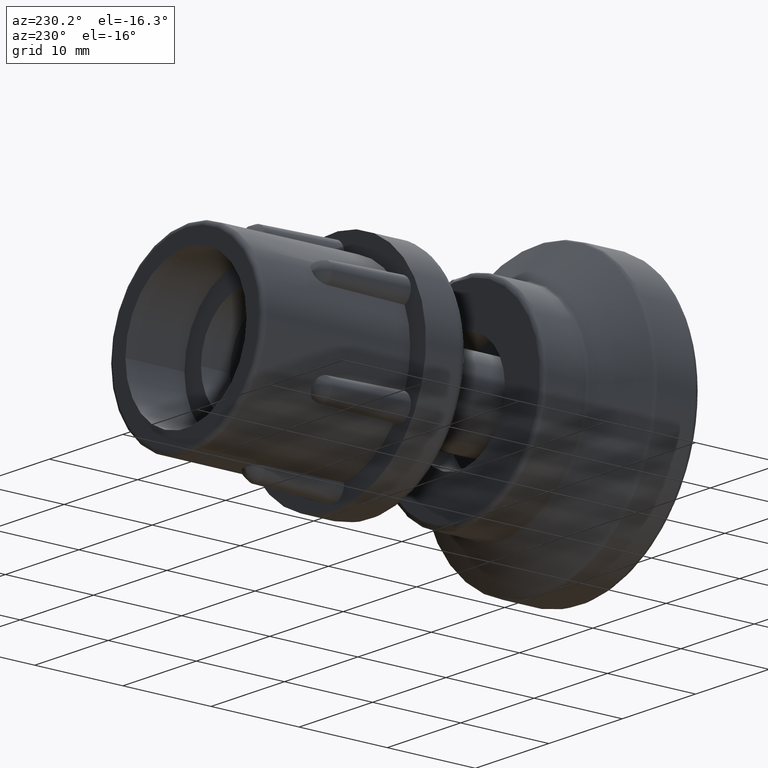
[diagram: clean part render]
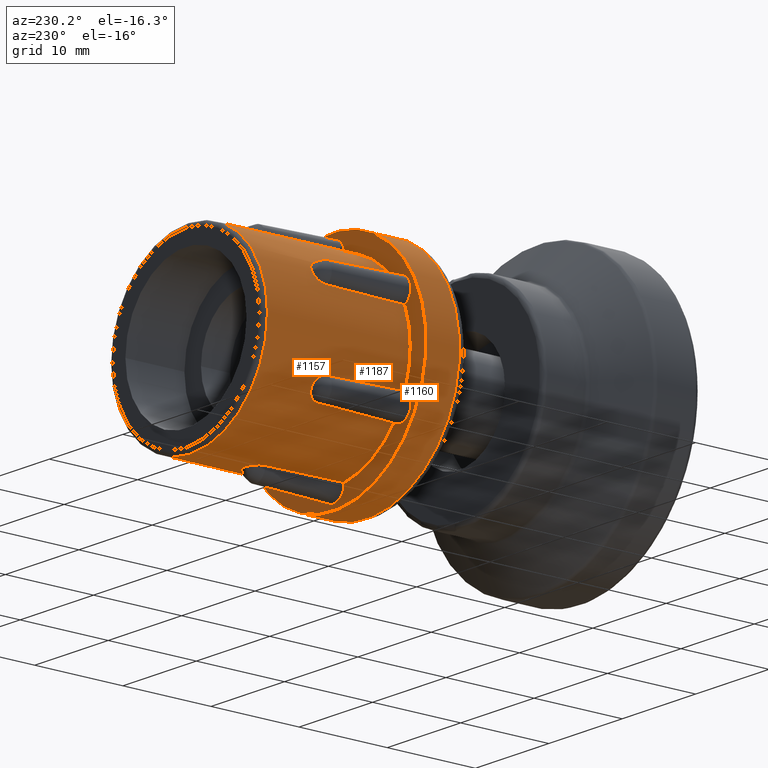
[diagram: same view with one multi-face feature highlighted, each face labeled with its STEP entity id]
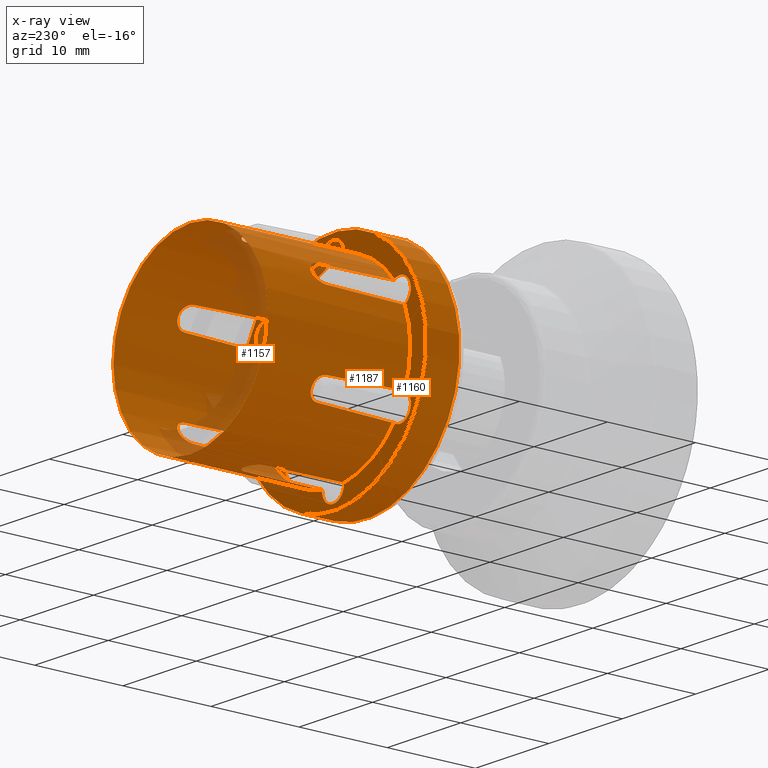
[diagram: x-ray of the same camera — body ghosted, the whole feature saturated]
A machine part, auxiliary view. The highlighted faces form ONE feature: a stepped (counterbored) hole: 2 coaxial cylindrical walls of radii 10.5 -> 12.65 mm joined by 1 annular planar shoulder face(s). The faces share edges in the B-rep.
The next image is the same camera in x-ray: the body ghosted and the whole hole feature saturated, so the bore chain is visible through the body.
Their STEP definitions:
[1] entity #1160 (Cylinder):
#60=FACE_BOUND('',#339,.T.);
#121=CIRCLE('',#1293,12.65);
#123=CIRCLE('',#1296,12.65);
#240=FACE_OUTER_BOUND('',#338,.T.);
#338=EDGE_LOOP('',(#995));
#339=EDGE_LOOP('',(#996));
#599=VERTEX_POINT('',#2296);
#601=VERTEX_POINT('',#2301);
#740=EDGE_CURVE('',#599,#599,#121,.T.);
#742=EDGE_CURVE('',#601,#601,#123,.T.);
#995=ORIENTED_EDGE('',*,*,#742,.T.);
#996=ORIENTED_EDGE('',*,*,#740,.F.);
#1105=CYLINDRICAL_SURFACE('',#1295,12.65);
#1160=ADVANCED_FACE('',(#240,#60),#1105,.T.);
#1293=AXIS2_PLACEMENT_3D('',#2297,#1592,#1593);
#1295=AXIS2_PLACEMENT_3D('',#2300,#1596,#1597);
#1296=AXIS2_PLACEMENT_3D('',#2302,#1598,#1599);
#1592=DIRECTION('center_axis',(7.00321971967498E-17,-1.,0.));
#1593=DIRECTION('ref_axis',(-1.,-6.58234994837049E-17,1.22464679914735E-16));
#1596=DIRECTION('center_axis',(7.00321971967498E-17,-1.,0.));
#1597=DIRECTION('ref_axis',(1.,0.,0.));
#1598=DIRECTION('center_axis',(7.00321971967498E-17,-1.,0.));
#1599=DIRECTION('ref_axis',(1.,7.00321971967498E-17,0.));
#2296=CARTESIAN_POINT('',(12.65,1.,0.));
#2297=CARTESIAN_POINT('Origin',(2.66122349347649E-16,1.,0.));
#2300=CARTESIAN_POINT('Origin',(1.680772732722E-16,2.4,0.));
#2301=CARTESIAN_POINT('',(12.65,4.8,0.));
#2302=CARTESIAN_POINT('Origin',(0.,4.8,0.));
[2] entity #1157 (Cylinder):
#57=FACE_BOUND('',#333,.T.);
#107=CIRCLE('',#1276,10.5);
#108=CIRCLE('',#1278,10.5);
#109=CIRCLE('',#1279,10.5);
#110=CIRCLE('',#1280,10.5);
#111=CIRCLE('',#1281,10.5);
#112=CIRCLE('',#1282,10.5);
#113=CIRCLE('',#1283,10.5);
#114=CIRCLE('',#1284,10.5);
#115=CIRCLE('',#1285,10.5);
#116=CIRCLE('',#1286,10.5);
#117=CIRCLE('',#1287,10.5);
#118=CIRCLE('',#1288,10.5);
#119=CIRCLE('',#1289,10.5);
#237=FACE_OUTER_BOUND('',#332,.T.);
#332=EDGE_LOOP('',(#954,#955,#956,#957,#958,#959,#960,#961,#962,#963,#964,
#965,#966,#967,#968,#969,#970,#971,#972,#973,#974,#975,#976,#977,#978,#979,
#980,#981,#982,#983,#984,#985,#986,#987,#988,#989));
#333=EDGE_LOOP('',(#990));
#472=B_SPLINE_CURVE_WITH_KNOTS('',3,(#2056,#2057,#2058,#2059,#2060,#2061,
#2062,#2063,#2064,#2065,#2066,#2067),.UNSPECIFIED.,.F.,.F.,(4,2,2,2,2,4),
(0.00272540016696076,0.0266375684598349,0.0532795626389164,0.102088229002091,
0.150892164157292,0.196507440558754),.UNSPECIFIED.);
#473=B_SPLINE_CURVE_WITH_KNOTS('',3,(#2069,#2070,#2071,#2072),
 .UNSPECIFIED.,.F.,.F.,(4,4),(0.950550370793692,1.75117502312903),
 .UNSPECIFIED.);
#474=B_SPLINE_CURVE_WITH_KNOTS('',3,(#2076,#2077,#2078,#2079),
 .UNSPECIFIED.,.F.,.F.,(4,4),(1.06220795663987,1.8628326072179),
 .UNSPECIFIED.);
#475=B_SPLINE_CURVE_WITH_KNOTS('',3,(#2081,#2082,#2083,#2084,#2085,#2086,
#2087,#2088,#2089,#2090,#2091,#2092),.UNSPECIFIED.,.F.,.F.,(4,2,2,2,2,4),
(0.202759216466594,0.248374492868062,0.297178428023268,0.345987094386448,
0.372629088565541,0.396541256858409),.UNSPECIFIED.);
#476=B_SPLINE_CURVE_WITH_KNOTS('',3,(#2096,#2097,#2098,#2099,#2100,#2101,
#2102,#2103,#2104,#2105,#2106,#2107),.UNSPECIFIED.,.F.,.F.,(4,2,2,2,2,4),
(0.00272540016695971,0.0266375684598334,0.0532795626389154,0.102088229002095,
0.150892164157302,0.19650744055877),.UNSPECIFIED.);
#477=B_SPLINE_CURVE_WITH_KNOTS('',3,(#2109,#2110,#2111,#2112),
 .UNSPECIFIED.,.F.,.F.,(4,4),(0.950550370793692,1.75117502312903),
 .UNSPECIFIED.);
#478=B_SPLINE_CURVE_WITH_KNOTS('',3,(#2116,#2117,#2118,#2119),
 .UNSPECIFIED.,.F.,.F.,(4,4),(1.06220795663987,1.8628326072179),
 .UNSPECIFIED.);
#479=B_SPLINE_CURVE_WITH_KNOTS('',3,(#2121,#2122,#2123,#2124,#2125,#2126,
#2127,#2128,#2129,#2130,#2131,#2132),.UNSPECIFIED.,.F.,.F.,(4,2,2,2,2,4),
(0.202759216466572,0.248374492868034,0.297178428023235,0.345987094386407,
0.372629088565489,0.396541256858363),.UNSPECIFIED.);
#480=B_SPLINE_CURVE_WITH_KNOTS('',3,(#2136,#2137,#2138,#2139,#2140,#2141,
#2142,#2143,#2144,#2145,#2146,#2147),.UNSPECIFIED.,.F.,.F.,(4,2,2,2,2,4),
(0.00272540016696093,0.0266375684598343,0.0532795626389139,0.102088229002084,
0.150892164157282,0.196507440558743),.UNSPECIFIED.);
#481=B_SPLINE_CURVE_WITH_KNOTS('',3,(#2149,#2150,#2151,#2152),
 .UNSPECIFIED.,.F.,.F.,(4,4),(0.950550370793692,1.75117502312903),
 .UNSPECIFIED.);
#482=B_SPLINE_CURVE_WITH_KNOTS('',3,(#2156,#2157,#2158,#2159),
 .UNSPECIFIED.,.F.,.F.,(4,4),(1.06220795663987,1.86283260721789),
 .UNSPECIFIED.);
#483=B_SPLINE_CURVE_WITH_KNOTS('',3,(#2161,#2162,#2163,#2164,#2165,#2166,
#2167,#2168,#2169,#2170,#2171,#2172),.UNSPECIFIED.,.F.,.F.,(4,2,2,2,2,4),
(0.202759216466568,0.248374492868031,0.297178428023233,0.345987094386406,
0.372629088565488,0.396541256858362),.UNSPECIFIED.);
#484=B_SPLINE_CURVE_WITH_KNOTS('',3,(#2176,#2177,#2178,#2179,#2180,#2181,
#2182,#2183,#2184,#2185,#2186,#2187),.UNSPECIFIED.,.F.,.F.,(4,2,2,2,2,4),
(0.00272540016697087,0.0266375684598407,0.0532795626389281,0.102088229002099,
0.150892164157296,0.196507440558757),.UNSPECIFIED.);
#485=B_SPLINE_CURVE_WITH_KNOTS('',3,(#2189,#2190,#2191,#2192),
 .UNSPECIFIED.,.F.,.F.,(4,4),(0.950550370793691,1.75117502312903),
 .UNSPECIFIED.);
#486=B_SPLINE_CURVE_WITH_KNOTS('',3,(#2196,#2197,#2198,#2199),
 .UNSPECIFIED.,.F.,.F.,(4,4),(1.06220795663987,1.86283260721789),
 .UNSPECIFIED.);
#487=B_SPLINE_CURVE_WITH_KNOTS('',3,(#2201,#2202,#2203,#2204,#2205,#2206,
#2207,#2208,#2209,#2210,#2211,#2212),.UNSPECIFIED.,.F.,.F.,(4,2,2,2,2,4),
(0.202759216466612,0.248374492868082,0.297178428023288,0.34598709438647,
0.372629088565553,0.396541256858427),.UNSPECIFIED.);
#488=B_SPLINE_CURVE_WITH_KNOTS('',3,(#2216,#2217,#2218,#2219,#2220,#2221,
#2222,#2223,#2224,#2225,#2226,#2227),.UNSPECIFIED.,.F.,.F.,(4,2,2,2,2,4),
(0.00272540016695129,0.0266375684598295,0.0532795626389059,0.102088229002087,
0.150892164157295,0.196507440558763),.UNSPECIFIED.);
#489=B_SPLINE_CURVE_WITH_KNOTS('',3,(#2229,#2230,#2231,#2232),
 .UNSPECIFIED.,.F.,.F.,(4,4),(0.950550370793691,1.75117502312903),
 .UNSPECIFIED.);
#490=B_SPLINE_CURVE_WITH_KNOTS('',3,(#2236,#2237,#2238,#2239),
 .UNSPECIFIED.,.F.,.F.,(4,4),(1.06220795663987,1.8628326072179),
 .UNSPECIFIED.);
#491=B_SPLINE_CURVE_WITH_KNOTS('',3,(#2241,#2242,#2243,#2244,#2245,#2246,
#2247,#2248,#2249,#2250,#2251,#2252),.UNSPECIFIED.,.F.,.F.,(4,2,2,2,2,4),
(0.202759216466572,0.248374492868034,0.297178428023234,0.345987094386407,
0.372629088565488,0.396541256858362),.UNSPECIFIED.);
#492=B_SPLINE_CURVE_WITH_KNOTS('',3,(#2256,#2257,#2258,#2259,#2260,#2261,
#2262,#2263,#2264,#2265,#2266,#2267),.UNSPECIFIED.,.F.,.F.,(4,2,2,2,2,4),
(0.00272540016696093,0.0266375684598348,0.0532795626389154,0.102088229002087,
0.150892164157285,0.196507440558747),.UNSPECIFIED.);
#493=B_SPLINE_CURVE_WITH_KNOTS('',3,(#2269,#2270,#2271,#2272),
 .UNSPECIFIED.,.F.,.F.,(4,4),(0.950550370793692,1.75117502312903),
 .UNSPECIFIED.);
#494=B_SPLINE_CURVE_WITH_KNOTS('',3,(#2276,#2277,#2278,#2279),
 .UNSPECIFIED.,.F.,.F.,(4,4),(1.06220795663987,1.86283260721789),
 .UNSPECIFIED.);
#495=B_SPLINE_CURVE_WITH_KNOTS('',3,(#2280,#2281,#2282,#2283,#2284,#2285,
#2286,#2287,#2288,#2289,#2290,#2291),.UNSPECIFIED.,.F.,.F.,(4,2,2,2,2,4),
(0.202759216466572,0.248374492868034,0.297178428023235,0.345987094386408,
0.372629088565489,0.396541256858363),.UNSPECIFIED.);
#561=VERTEX_POINT('',#2049);
#562=VERTEX_POINT('',#2052);
#563=VERTEX_POINT('',#2053);
#564=VERTEX_POINT('',#2055);
#565=VERTEX_POINT('',#2068);
#566=VERTEX_POINT('',#2073);
#567=VERTEX_POINT('',#2075);
#568=VERTEX_POINT('',#2080);
#569=VERTEX_POINT('',#2093);
#570=VERTEX_POINT('',#2095);
#571=VERTEX_POINT('',#2108);
#572=VERTEX_POINT('',#2113);
#573=VERTEX_POINT('',#2115);
#574=VERTEX_POINT('',#2120);
#575=VERTEX_POINT('',#2133);
#576=VERTEX_POINT('',#2135);
#577=VERTEX_POINT('',#2148);
#578=VERTEX_POINT('',#2153);
#579=VERTEX_POINT('',#2155);
#580=VERTEX_POINT('',#2160);
#581=VERTEX_POINT('',#2173);
#582=VERTEX_POINT('',#2175);
#583=VERTEX_POINT('',#2188);
#584=VERTEX_POINT('',#2193);
#585=VERTEX_POINT('',#2195);
#586=VERTEX_POINT('',#2200);
#587=VERTEX_POINT('',#2213);
#588=VERTEX_POINT('',#2215);
#589=VERTEX_POINT('',#2228);
#590=VERTEX_POINT('',#2233);
#591=VERTEX_POINT('',#2235);
#592=VERTEX_POINT('',#2240);
#593=VERTEX_POINT('',#2253);
#594=VERTEX_POINT('',#2255);
#595=VERTEX_POINT('',#2268);
#596=VERTEX_POINT('',#2273);
#597=VERTEX_POINT('',#2275);
#702=EDGE_CURVE('',#561,#561,#107,.T.);
#703=EDGE_CURVE('',#562,#563,#108,.T.);
#704=EDGE_CURVE('',#564,#563,#472,.F.);
#705=EDGE_CURVE('',#565,#564,#473,.T.);
#706=EDGE_CURVE('',#566,#565,#109,.T.);
#707=EDGE_CURVE('',#567,#566,#474,.T.);
#708=EDGE_CURVE('',#568,#567,#475,.F.);
#709=EDGE_CURVE('',#568,#569,#110,.T.);
#710=EDGE_CURVE('',#570,#569,#476,.F.);
#711=EDGE_CURVE('',#571,#570,#477,.T.);
#712=EDGE_CURVE('',#572,#571,#111,.T.);
#713=EDGE_CURVE('',#573,#572,#478,.T.);
#714=EDGE_CURVE('',#574,#573,#479,.F.);
#715=EDGE_CURVE('',#574,#575,#112,.T.);
#716=EDGE_CURVE('',#576,#575,#480,.F.);
#717=EDGE_CURVE('',#577,#576,#481,.T.);
#718=EDGE_CURVE('',#578,#577,#113,.T.);
#719=EDGE_CURVE('',#579,#578,#482,.T.);
#720=EDGE_CURVE('',#580,#579,#483,.F.);
#721=EDGE_CURVE('',#580,#581,#114,.T.);
#722=EDGE_CURVE('',#582,#581,#484,.F.);
#723=EDGE_CURVE('',#583,#582,#485,.T.);
#724=EDGE_CURVE('',#584,#583,#115,.T.);
#725=EDGE_CURVE('',#585,#584,#486,.T.);
#726=EDGE_CURVE('',#586,#585,#487,.F.);
#727=EDGE_CURVE('',#586,#587,#116,.T.);
#728=EDGE_CURVE('',#588,#587,#488,.F.);
#729=EDGE_CURVE('',#589,#588,#489,.T.);
#730=EDGE_CURVE('',#590,#589,#117,.T.);
#731=EDGE_CURVE('',#591,#590,#490,.T.);
#732=EDGE_CURVE('',#592,#591,#491,.F.);
#733=EDGE_CURVE('',#592,#593,#118,.T.);
#734=EDGE_CURVE('',#594,#593,#492,.F.);
#735=EDGE_CURVE('',#595,#594,#493,.T.);
#736=EDGE_CURVE('',#596,#595,#119,.T.);
#737=EDGE_CURVE('',#597,#596,#494,.T.);
#738=EDGE_CURVE('',#562,#597,#495,.F.);
#954=ORIENTED_EDGE('',*,*,#703,.T.);
#955=ORIENTED_EDGE('',*,*,#704,.F.);
#956=ORIENTED_EDGE('',*,*,#705,.F.);
#957=ORIENTED_EDGE('',*,*,#706,.F.);
#958=ORIENTED_EDGE('',*,*,#707,.F.);
#959=ORIENTED_EDGE('',*,*,#708,.F.);
#960=ORIENTED_EDGE('',*,*,#709,.T.);
#961=ORIENTED_EDGE('',*,*,#710,.F.);
#962=ORIENTED_EDGE('',*,*,#711,.F.);
#963=ORIENTED_EDGE('',*,*,#712,.F.);
#964=ORIENTED_EDGE('',*,*,#713,.F.);
#965=ORIENTED_EDGE('',*,*,#714,.F.);
#966=ORIENTED_EDGE('',*,*,#715,.T.);
#967=ORIENTED_EDGE('',*,*,#716,.F.);
#968=ORIENTED_EDGE('',*,*,#717,.F.);
#969=ORIENTED_EDGE('',*,*,#718,.F.);
#970=ORIENTED_EDGE('',*,*,#719,.F.);
#971=ORIENTED_EDGE('',*,*,#720,.F.);
#972=ORIENTED_EDGE('',*,*,#721,.T.);
#973=ORIENTED_EDGE('',*,*,#722,.F.);
#974=ORIENTED_EDGE('',*,*,#723,.F.);
#975=ORIENTED_EDGE('',*,*,#724,.F.);
#976=ORIENTED_EDGE('',*,*,#725,.F.);
#977=ORIENTED_EDGE('',*,*,#726,.F.);
#978=ORIENTED_EDGE('',*,*,#727,.T.);
#979=ORIENTED_EDGE('',*,*,#728,.F.);
#980=ORIENTED_EDGE('',*,*,#729,.F.);
#981=ORIENTED_EDGE('',*,*,#730,.F.);
#982=ORIENTED_EDGE('',*,*,#731,.F.);
#983=ORIENTED_EDGE('',*,*,#732,.F.);
#984=ORIENTED_EDGE('',*,*,#733,.T.);
#985=ORIENTED_EDGE('',*,*,#734,.F.);
#986=ORIENTED_EDGE('',*,*,#735,.F.);
#987=ORIENTED_EDGE('',*,*,#736,.F.);
#988=ORIENTED_EDGE('',*,*,#737,.F.);
#989=ORIENTED_EDGE('',*,*,#738,.F.);
#990=ORIENTED_EDGE('',*,*,#702,.F.);
#1104=CYLINDRICAL_SURFACE('',#1277,10.5);
#1157=ADVANCED_FACE('',(#237,#57),#1104,.T.);
#1276=AXIS2_PLACEMENT_3D('',#2050,#1558,#1559);
#1277=AXIS2_PLACEMENT_3D('',#2051,#1560,#1561);
#1278=AXIS2_PLACEMENT_3D('',#2054,#1562,#1563);
#1279=AXIS2_PLACEMENT_3D('',#2074,#1564,#1565);
#1280=AXIS2_PLACEMENT_3D('',#2094,#1566,#1567);
#1281=AXIS2_PLACEMENT_3D('',#2114,#1568,#1569);
#1282=AXIS2_PLACEMENT_3D('',#2134,#1570,#1571);
#1283=AXIS2_PLACEMENT_3D('',#2154,#1572,#1573);
#1284=AXIS2_PLACEMENT_3D('',#2174,#1574,#1575);
#1285=AXIS2_PLACEMENT_3D('',#2194,#1576,#1577);
#1286=AXIS2_PLACEMENT_3D('',#2214,#1578,#1579);
#1287=AXIS2_PLACEMENT_3D('',#2234,#1580,#1581);
#1288=AXIS2_PLACEMENT_3D('',#2254,#1582,#1583);
#1289=AXIS2_PLACEMENT_3D('',#2274,#1584,#1585);
#1558=DIRECTION('center_axis',(-7.00321971967498E-17,1.,0.));
#1559=DIRECTION('ref_axis',(-1.,-7.26931742314091E-17,1.22464679914735E-16));
#1560=DIRECTION('center_axis',(7.00321971967498E-17,-1.,0.));
#1561=DIRECTION('ref_axis',(1.,0.,0.));
#1562=DIRECTION('center_axis',(-3.50160985983749E-17,1.,6.06496618552267E-17));
#1563=DIRECTION('ref_axis',(1.,0.,0.));
#1564=DIRECTION('center_axis',(7.00321971967498E-17,-1.,0.));
#1565=DIRECTION('ref_axis',(1.,0.,0.));
#1566=DIRECTION('center_axis',(3.50160985983749E-17,1.,6.06496618552267E-17));
#1567=DIRECTION('ref_axis',(1.,0.,0.));
#1568=DIRECTION('center_axis',(7.00321971967498E-17,-1.,0.));
#1569=DIRECTION('ref_axis',(1.,0.,0.));
#1570=DIRECTION('center_axis',(7.00321971967498E-17,1.,-6.16297582203915E-33));
#1571=DIRECTION('ref_axis',(1.,0.,0.));
#1572=DIRECTION('center_axis',(7.00321971967498E-17,-1.,0.));
#1573=DIRECTION('ref_axis',(1.,0.,0.));
#1574=DIRECTION('center_axis',(3.50160985983749E-17,1.,-6.06496618552267E-17));
#1575=DIRECTION('ref_axis',(1.,0.,0.));
#1576=DIRECTION('center_axis',(7.00321971967498E-17,-1.,0.));
#1577=DIRECTION('ref_axis',(1.,0.,0.));
#1578=DIRECTION('center_axis',(-3.50160985983749E-17,1.,-6.06496618552267E-17));
#1579=DIRECTION('ref_axis',(1.,0.,0.));
#1580=DIRECTION('center_axis',(7.00321971967498E-17,-1.,0.));
#1581=DIRECTION('ref_axis',(1.,0.,0.));
#1582=DIRECTION('center_axis',(-7.00321971967498E-17,1.,0.));
#1583=DIRECTION('ref_axis',(1.,0.,0.));
#1584=DIRECTION('center_axis',(7.00321971967498E-17,-1.,0.));
#1585=DIRECTION('ref_axis',(1.,0.,0.));
#2049=CARTESIAN_POINT('',(10.5,21.,-2.57175827820944E-15));
#2050=CARTESIAN_POINT('Origin',(-1.13452159458735E-15,21.,0.));
#2051=CARTESIAN_POINT('Origin',(-5.84768846592861E-16,13.15,0.));
#2052=CARTESIAN_POINT('',(-9.07779776600053,14.8,-5.27670235275742));
#2053=CARTESIAN_POINT('',(-9.10865716869732,14.8,-5.22325229939536));
#2054=CARTESIAN_POINT('Origin',(-7.00321971967498E-16,14.8,0.));
#2055=CARTESIAN_POINT('',(-9.66469396028175,13.5812402386484,-4.10410655978782));
#2056=CARTESIAN_POINT('Ctrl Pts',(-9.10865716869732,14.8,-5.22325229939536));
#2057=CARTESIAN_POINT('Ctrl Pts',(-9.14828596385077,14.8,-5.15414495240715));
#2058=CARTESIAN_POINT('Ctrl Pts',(-9.18703686397533,14.7923853728023,-5.08472985827637));
#2059=CARTESIAN_POINT('Ctrl Pts',(-9.2660728028761,14.7603829412495,-4.93938224384525));
#2060=CARTESIAN_POINT('Ctrl Pts',(-9.30577950519381,14.7342798764769,-4.86406582529983));
#2061=CARTESIAN_POINT('Ctrl Pts',(-9.41131181645473,14.6354468067101,-4.65828203704275));
#2062=CARTESIAN_POINT('Ctrl Pts',(-9.47032952597156,14.5429598551513,-4.53606692332961));
#2063=CARTESIAN_POINT('Ctrl Pts',(-9.5667533744407,14.3112494604851,-4.3290035582413));
#2064=CARTESIAN_POINT('Ctrl Pts',(-9.60332623310694,14.1742340579084,-4.24616732171385));
#2065=CARTESIAN_POINT('Ctrl Pts',(-9.65098485914098,13.8830341448429,-4.13664370050256));
#2066=CARTESIAN_POINT('Ctrl Pts',(-9.66320744015603,13.7330824846638,-4.10760714191734));
#2067=CARTESIAN_POINT('Ctrl Pts',(-9.6646939602788,13.5812402386483,-4.10410655979478));
#2068=CARTESIAN_POINT('',(-9.7485625916759,4.8,-3.9007085761663));
#2069=CARTESIAN_POINT('Ctrl Pts',(-9.7485625916759,4.8,-3.9007085761663));
#2070=CARTESIAN_POINT('Ctrl Pts',(-9.72149824530748,7.70664905057651,-3.96834717808273));
#2071=CARTESIAN_POINT('Ctrl Pts',(-9.69326776811045,10.6625369866884,-4.03681856326026));
#2072=CARTESIAN_POINT('Ctrl Pts',(-9.6646939602788,13.5812402386482,-4.10410655979478));
#2073=CARTESIAN_POINT('',(-9.74856259167589,4.8,3.90070857616631));
#2074=CARTESIAN_POINT('Origin',(0.,4.8,0.));
#2075=CARTESIAN_POINT('',(-9.66469396028175,13.5812402386484,4.10410655978784));
#2076=CARTESIAN_POINT('Ctrl Pts',(-9.66469396027879,13.5812402386482,4.10410655979479));
#2077=CARTESIAN_POINT('Ctrl Pts',(-9.69326776766236,10.6625370324582,4.03681856431545));
#2078=CARTESIAN_POINT('Ctrl Pts',(-9.7214982448797,7.70664909651869,3.96834717915183));
#2079=CARTESIAN_POINT('Ctrl Pts',(-9.74856259167589,4.8,3.90070857616631));
#2080=CARTESIAN_POINT('',(-9.10865716869731,14.8,5.22325229939537));
#2081=CARTESIAN_POINT('Ctrl Pts',(-9.66469396027879,13.5812402386483,4.10410655979479));
#2082=CARTESIAN_POINT('Ctrl Pts',(-9.66320744015603,13.7330824846638,4.10760714191736));
#2083=CARTESIAN_POINT('Ctrl Pts',(-9.65098485914097,13.8830341448429,4.13664370050258));
#2084=CARTESIAN_POINT('Ctrl Pts',(-9.60332623310693,14.1742340579084,4.24616732171387));
#2085=CARTESIAN_POINT('Ctrl Pts',(-9.56675337444069,14.3112494604851,4.3290035582413));
#2086=CARTESIAN_POINT('Ctrl Pts',(-9.47032952597155,14.5429598551513,4.53606692332962));
#2087=CARTESIAN_POINT('Ctrl Pts',(-9.41131181645473,14.6354468067101,4.65828203704276));
#2088=CARTESIAN_POINT('Ctrl Pts',(-9.30577950519379,14.7342798764769,4.86406582529987));
#2089=CARTESIAN_POINT('Ctrl Pts',(-9.26607280287607,14.7603829412495,4.93938224384531));
#2090=CARTESIAN_POINT('Ctrl Pts',(-9.1870368639753,14.7923853728023,5.08472985827644));
#2091=CARTESIAN_POINT('Ctrl Pts',(-9.14828596385074,14.8,5.15414495240719));
#2092=CARTESIAN_POINT('Ctrl Pts',(-9.10865716869731,14.8,5.22325229939537));
#2093=CARTESIAN_POINT('',(-9.07779776600053,14.8,5.27670235275743));
#2094=CARTESIAN_POINT('Origin',(-7.00321971967498E-16,14.8,0.));
#2095=CARTESIAN_POINT('',(-8.38660752075549,13.5812402386484,6.31781720951211));
#2096=CARTESIAN_POINT('Ctrl Pts',(-9.07779776600053,14.8,5.27670235275744));
#2097=CARTESIAN_POINT('Ctrl Pts',(-9.03776344549731,14.8,5.34557556957579));
#2098=CARTESIAN_POINT('Ctrl Pts',(-8.99702366063626,14.7923853728023,5.41384238056857));
#2099=CARTESIAN_POINT('Ctrl Pts',(-8.91066690360982,14.7603829412495,5.55496331868416));
#2100=CARTESIAN_POINT('Ctrl Pts',(-8.86529432298628,14.7342798764769,5.62700854086451));
#2101=CARTESIAN_POINT('Ctrl Pts',(-8.73984649029911,14.6354468067101,5.82129409746509));
#2102=CARTESIAN_POINT('Ctrl Pts',(-8.66351395185555,14.5429598551513,5.9335124900364));
#2103=CARTESIAN_POINT('Ctrl Pts',(-8.53240374173054,14.3112494604851,6.1205496748855));
#2104=CARTESIAN_POINT('Ctrl Pts',(-8.478951885877,14.1742340579084,6.1936408178432));
#2105=CARTESIAN_POINT('Ctrl Pts',(-8.40793096061058,13.8830341448429,6.28967620930379));
#2106=CARTESIAN_POINT('Ctrl Pts',(-8.38889585374483,13.7330824846638,6.31477955425525));
#2107=CARTESIAN_POINT('Ctrl Pts',(-8.38660752076004,13.5812402386483,6.31781720950608));
#2108=CARTESIAN_POINT('',(-8.25239401555779,4.8,6.49214856669084));
#2109=CARTESIAN_POINT('Ctrl Pts',(-8.25239401555779,4.8,6.49214856669084));
#2110=CARTESIAN_POINT('Ctrl Pts',(-8.29743858990967,7.7066490505765,6.43489085424075));
#2111=CARTESIAN_POINT('Ctrl Pts',(-8.34262131030721,10.6625369866884,6.37620685123841));
#2112=CARTESIAN_POINT('Ctrl Pts',(-8.38660752076003,13.5812402386482,6.31781720950608));
#2113=CARTESIAN_POINT('',(-1.4961685761181,4.8,10.3928571428571));
#2114=CARTESIAN_POINT('Origin',(0.,4.8,0.));
#2115=CARTESIAN_POINT('',(-1.27808643952625,13.5812402386484,10.4219237692999));
#2116=CARTESIAN_POINT('Ctrl Pts',(-1.27808643951875,13.5812402386482,10.4219237693009));
#2117=CARTESIAN_POINT('Ctrl Pts',(-1.35064645666538,10.6625370324582,10.4130254146382));
#2118=CARTESIAN_POINT('Ctrl Pts',(-1.42405965425805,7.70664909651869,10.4032380324876));
#2119=CARTESIAN_POINT('Ctrl Pts',(-1.4961685761181,4.8,10.3928571428571));
#2120=CARTESIAN_POINT('',(-0.0308594026967835,14.8,10.4999546521528));
#2121=CARTESIAN_POINT('Ctrl Pts',(-1.27808643951875,13.5812402386483,10.4219237693009));
#2122=CARTESIAN_POINT('Ctrl Pts',(-1.27431158641119,13.7330824846638,10.4223866961726));
#2123=CARTESIAN_POINT('Ctrl Pts',(-1.24305389853039,13.8830341448429,10.4263199098064));
#2124=CARTESIAN_POINT('Ctrl Pts',(-1.12437434722993,14.1742340579084,10.4398081395571));
#2125=CARTESIAN_POINT('Ctrl Pts',(-1.03434963271015,14.3112494604851,10.4495532331268));
#2126=CARTESIAN_POINT('Ctrl Pts',(-0.806815574116006,14.5429598551513,10.469579413366));
#2127=CARTESIAN_POINT('Ctrl Pts',(-0.671465326155614,14.6354468067101,10.4795761345078));
#2128=CARTESIAN_POINT('Ctrl Pts',(-0.440485182207515,14.7342798764769,10.4910743661643));
#2129=CARTESIAN_POINT('Ctrl Pts',(-0.35540589926627,14.7603829412495,10.4943455625294));
#2130=CARTESIAN_POINT('Ctrl Pts',(-0.190013203339067,14.7923853728023,10.4985722388449));
#2131=CARTESIAN_POINT('Ctrl Pts',(-0.110522518353444,14.8,10.4997205219829));
#2132=CARTESIAN_POINT('Ctrl Pts',(-0.0308594026967864,14.8,10.4999546521528));
#2133=CARTESIAN_POINT('',(0.0308594026967884,14.8,10.4999546521528));
#2134=CARTESIAN_POINT('Origin',(-7.00321971967498E-16,14.8,0.));
#2135=CARTESIAN_POINT('',(1.27808643952626,13.5812402386484,10.4219237692999));
#2136=CARTESIAN_POINT('Ctrl Pts',(0.0308594026967912,14.8,10.4999546521528));
#2137=CARTESIAN_POINT('Ctrl Pts',(0.110522518353447,14.8,10.4997205219829));
#2138=CARTESIAN_POINT('Ctrl Pts',(0.190013203339069,14.7923853728023,10.4985722388449));
#2139=CARTESIAN_POINT('Ctrl Pts',(0.355405899266275,14.7603829412495,10.4943455625294));
#2140=CARTESIAN_POINT('Ctrl Pts',(0.440485182207521,14.7342798764769,10.4910743661643));
#2141=CARTESIAN_POINT('Ctrl Pts',(0.67146532615562,14.6354468067101,10.4795761345078));
#2142=CARTESIAN_POINT('Ctrl Pts',(0.806815574116011,14.5429598551513,10.469579413366));
#2143=CARTESIAN_POINT('Ctrl Pts',(1.03434963271015,14.3112494604851,10.4495532331268));
#2144=CARTESIAN_POINT('Ctrl Pts',(1.12437434722993,14.1742340579084,10.4398081395571));
#2145=CARTESIAN_POINT('Ctrl Pts',(1.2430538985304,13.8830341448429,10.4263199098064));
#2146=CARTESIAN_POINT('Ctrl Pts',(1.2743115864112,13.7330824846638,10.4223866961726));
#2147=CARTESIAN_POINT('Ctrl Pts',(1.27808643951876,13.5812402386483,10.4219237693009));
#2148=CARTESIAN_POINT('',(1.4961685761181,4.8,10.3928571428571));
#2149=CARTESIAN_POINT('Ctrl Pts',(1.4961685761181,4.8,10.3928571428571));
#2150=CARTESIAN_POINT('Ctrl Pts',(1.4240596553978,7.70664905057651,10.4032380323235));
#2151=CARTESIAN_POINT('Ctrl Pts',(1.35064645780324,10.6625369866884,10.4130254144987));
#2152=CARTESIAN_POINT('Ctrl Pts',(1.27808643951876,13.5812402386482,10.4219237693009));
#2153=CARTESIAN_POINT('',(8.25239401555779,4.8,6.49214856669084));
#2154=CARTESIAN_POINT('Origin',(0.,4.8,0.));
#2155=CARTESIAN_POINT('',(8.38660752075549,13.5812402386484,6.31781720951211));
#2156=CARTESIAN_POINT('Ctrl Pts',(8.38660752076004,13.5812402386482,6.31781720950607));
#2157=CARTESIAN_POINT('Ctrl Pts',(8.34262131099699,10.6625370324582,6.37620685032276));
#2158=CARTESIAN_POINT('Ctrl Pts',(8.29743859062165,7.70664909651869,6.43489085333574));
#2159=CARTESIAN_POINT('Ctrl Pts',(8.25239401555779,4.8,6.49214856669084));
#2160=CARTESIAN_POINT('',(9.07779776600053,14.8,5.27670235275743));
#2161=CARTESIAN_POINT('Ctrl Pts',(8.38660752076004,13.5812402386483,6.31781720950607));
#2162=CARTESIAN_POINT('Ctrl Pts',(8.38889585374483,13.7330824846638,6.31477955425524));
#2163=CARTESIAN_POINT('Ctrl Pts',(8.40793096061058,13.8830341448429,6.28967620930378));
#2164=CARTESIAN_POINT('Ctrl Pts',(8.478951885877,14.1742340579084,6.19364081784319));
#2165=CARTESIAN_POINT('Ctrl Pts',(8.53240374173054,14.3112494604851,6.12054967488549));
#2166=CARTESIAN_POINT('Ctrl Pts',(8.66351395185555,14.5429598551513,5.93351249003639));
#2167=CARTESIAN_POINT('Ctrl Pts',(8.73984649029912,14.6354468067101,5.82129409746509));
#2168=CARTESIAN_POINT('Ctrl Pts',(8.86529432298629,14.7342798764769,5.6270085408645));
#2169=CARTESIAN_POINT('Ctrl Pts',(8.91066690360982,14.7603829412495,5.55496331868415));
#2170=CARTESIAN_POINT('Ctrl Pts',(8.99702366063626,14.7923853728023,5.41384238056856));
#2171=CARTESIAN_POINT('Ctrl Pts',(9.03776344549732,14.8,5.34557556957579));
#2172=CARTESIAN_POINT('Ctrl Pts',(9.07779776600053,14.8,5.27670235275743));
#2173=CARTESIAN_POINT('',(9.10865716869731,14.8,5.22325229939537));
#2174=CARTESIAN_POINT('Origin',(-7.00321971967498E-16,14.8,0.));
#2175=CARTESIAN_POINT('',(9.66469396028175,13.5812402386484,4.10410655978783));
#2176=CARTESIAN_POINT('Ctrl Pts',(9.10865716869731,14.8,5.22325229939536));
#2177=CARTESIAN_POINT('Ctrl Pts',(9.14828596385075,14.8,5.15414495240717));
#2178=CARTESIAN_POINT('Ctrl Pts',(9.18703686397531,14.7923853728023,5.0847298582764));
#2179=CARTESIAN_POINT('Ctrl Pts',(9.26607280287608,14.7603829412495,4.93938224384529));
#2180=CARTESIAN_POINT('Ctrl Pts',(9.3057795051938,14.7342798764769,4.86406582529986));
#2181=CARTESIAN_POINT('Ctrl Pts',(9.41131181645473,14.6354468067101,4.65828203704275));
#2182=CARTESIAN_POINT('Ctrl Pts',(9.47032952597155,14.5429598551513,4.53606692332962));
#2183=CARTESIAN_POINT('Ctrl Pts',(9.56675337444069,14.3112494604851,4.3290035582413));
#2184=CARTESIAN_POINT('Ctrl Pts',(9.60332623310694,14.1742340579084,4.24616732171386));
#2185=CARTESIAN_POINT('Ctrl Pts',(9.65098485914098,13.8830341448429,4.13664370050257));
#2186=CARTESIAN_POINT('Ctrl Pts',(9.66320744015603,13.7330824846638,4.10760714191735));
#2187=CARTESIAN_POINT('Ctrl Pts',(9.66469396027879,13.5812402386483,4.10410655979478));
#2188=CARTESIAN_POINT('',(9.74856259167589,4.8,3.9007085761663));
#2189=CARTESIAN_POINT('Ctrl Pts',(9.74856259167589,4.8,3.9007085761663));
#2190=CARTESIAN_POINT('Ctrl Pts',(9.72149824530747,7.70664905057651,3.96834717808273));
#2191=CARTESIAN_POINT('Ctrl Pts',(9.69326776811045,10.6625369866884,4.03681856326026));
#2192=CARTESIAN_POINT('Ctrl Pts',(9.66469396027879,13.5812402386482,4.10410655979478));
#2193=CARTESIAN_POINT('',(9.74856259167589,4.8,-3.9007085761663));
#2194=CARTESIAN_POINT('Origin',(0.,4.8,0.));
#2195=CARTESIAN_POINT('',(9.66469396028175,13.5812402386484,-4.10410655978783));
#2196=CARTESIAN_POINT('Ctrl Pts',(9.66469396027879,13.5812402386482,-4.10410655979478));
#2197=CARTESIAN_POINT('Ctrl Pts',(9.69326776766237,10.6625370324582,-4.03681856431545));
#2198=CARTESIAN_POINT('Ctrl Pts',(9.7214982448797,7.70664909651869,-3.96834717915183));
#2199=CARTESIAN_POINT('Ctrl Pts',(9.74856259167589,4.8,-3.9007085761663));
#2200=CARTESIAN_POINT('',(9.10865716869731,14.8,-5.22325229939537));
#2201=CARTESIAN_POINT('Ctrl Pts',(9.66469396027879,13.5812402386483,-4.10410655979479));
#2202=CARTESIAN_POINT('Ctrl Pts',(9.66320744015603,13.7330824846638,-4.10760714191735));
#2203=CARTESIAN_POINT('Ctrl Pts',(9.65098485914097,13.8830341448429,-4.13664370050257));
#2204=CARTESIAN_POINT('Ctrl Pts',(9.60332623310693,14.1742340579084,-4.24616732171386));
#2205=CARTESIAN_POINT('Ctrl Pts',(9.56675337444069,14.3112494604851,-4.3290035582413));
#2206=CARTESIAN_POINT('Ctrl Pts',(9.47032952597155,14.5429598551513,-4.53606692332962));
#2207=CARTESIAN_POINT('Ctrl Pts',(9.41131181645473,14.6354468067101,-4.65828203704275));
#2208=CARTESIAN_POINT('Ctrl Pts',(9.30577950519381,14.7342798764769,-4.86406582529983));
#2209=CARTESIAN_POINT('Ctrl Pts',(9.2660728028761,14.7603829412495,-4.93938224384525));
#2210=CARTESIAN_POINT('Ctrl Pts',(9.18703686397533,14.7923853728023,-5.08472985827638));
#2211=CARTESIAN_POINT('Ctrl Pts',(9.14828596385076,14.8,-5.15414495240716));
#2212=CARTESIAN_POINT('Ctrl Pts',(9.10865716869731,14.8,-5.22325229939537));
#2213=CARTESIAN_POINT('',(9.07779776600053,14.8,-5.27670235275743));
#2214=CARTESIAN_POINT('Origin',(-7.00321971967498E-16,14.8,0.));
#2215=CARTESIAN_POINT('',(8.38660752075549,13.5812402386484,-6.31781720951211));
#2216=CARTESIAN_POINT('Ctrl Pts',(9.07779776600053,14.8,-5.27670235275743));
#2217=CARTESIAN_POINT('Ctrl Pts',(9.03776344549731,14.8,-5.3455755695758));
#2218=CARTESIAN_POINT('Ctrl Pts',(8.99702366063624,14.7923853728023,-5.41384238056859));
#2219=CARTESIAN_POINT('Ctrl Pts',(8.9106669036098,14.7603829412495,-5.55496331868418));
#2220=CARTESIAN_POINT('Ctrl Pts',(8.86529432298627,14.7342798764769,-5.62700854086452));
#2221=CARTESIAN_POINT('Ctrl Pts',(8.73984649029911,14.6354468067101,-5.82129409746509));
#2222=CARTESIAN_POINT('Ctrl Pts',(8.66351395185555,14.5429598551513,-5.9335124900364));
#2223=CARTESIAN_POINT('Ctrl Pts',(8.53240374173054,14.3112494604851,-6.12054967488549));
#2224=CARTESIAN_POINT('Ctrl Pts',(8.478951885877,14.1742340579084,-6.1936408178432));
#2225=CARTESIAN_POINT('Ctrl Pts',(8.40793096061058,13.8830341448429,-6.28967620930378));
#2226=CARTESIAN_POINT('Ctrl Pts',(8.38889585374483,13.7330824846638,-6.31477955425524));
#2227=CARTESIAN_POINT('Ctrl Pts',(8.38660752076004,13.5812402386483,-6.31781720950607));
#2228=CARTESIAN_POINT('',(8.25239401555779,4.8,-6.49214856669084));
#2229=CARTESIAN_POINT('Ctrl Pts',(8.25239401555779,4.8,-6.49214856669084));
#2230=CARTESIAN_POINT('Ctrl Pts',(8.29743858990968,7.70664905057651,-6.43489085424075));
#2231=CARTESIAN_POINT('Ctrl Pts',(8.34262131030721,10.6625369866884,-6.3762068512384));
#2232=CARTESIAN_POINT('Ctrl Pts',(8.38660752076004,13.5812402386482,-6.31781720950608));
#2233=CARTESIAN_POINT('',(1.4961685761181,4.8,-10.3928571428571));
#2234=CARTESIAN_POINT('Origin',(0.,4.8,0.));
#2235=CARTESIAN_POINT('',(1.27808643952625,13.5812402386484,-10.4219237692999));
#2236=CARTESIAN_POINT('Ctrl Pts',(1.27808643951876,13.5812402386482,-10.4219237693009));
#2237=CARTESIAN_POINT('Ctrl Pts',(1.35064645666538,10.6625370324582,-10.4130254146382));
#2238=CARTESIAN_POINT('Ctrl Pts',(1.42405965425805,7.70664909651869,-10.4032380324876));
#2239=CARTESIAN_POINT('Ctrl Pts',(1.4961685761181,4.8,-10.3928571428571));
#2240=CARTESIAN_POINT('',(0.0308594026967853,14.8,-10.4999546521528));
#2241=CARTESIAN_POINT('Ctrl Pts',(1.27808643951875,13.5812402386483,-10.4219237693009));
#2242=CARTESIAN_POINT('Ctrl Pts',(1.2743115864112,13.7330824846638,-10.4223866961726));
#2243=CARTESIAN_POINT('Ctrl Pts',(1.24305389853039,13.8830341448429,-10.4263199098063));
#2244=CARTESIAN_POINT('Ctrl Pts',(1.12437434722993,14.1742340579084,-10.4398081395571));
#2245=CARTESIAN_POINT('Ctrl Pts',(1.03434963271015,14.3112494604851,-10.4495532331268));
#2246=CARTESIAN_POINT('Ctrl Pts',(0.806815574116007,14.5429598551513,-10.469579413366));
#2247=CARTESIAN_POINT('Ctrl Pts',(0.671465326155616,14.6354468067101,-10.4795761345078));
#2248=CARTESIAN_POINT('Ctrl Pts',(0.440485182207517,14.7342798764769,-10.4910743661643));
#2249=CARTESIAN_POINT('Ctrl Pts',(0.355405899266272,14.7603829412495,-10.4943455625294));
#2250=CARTESIAN_POINT('Ctrl Pts',(0.190013203339069,14.7923853728023,-10.4985722388449));
#2251=CARTESIAN_POINT('Ctrl Pts',(0.110522518353446,14.8,-10.4997205219829));
#2252=CARTESIAN_POINT('Ctrl Pts',(0.030859402696788,14.8,-10.4999546521528));
#2253=CARTESIAN_POINT('',(-0.0308594026967867,14.8,-10.4999546521528));
#2254=CARTESIAN_POINT('Origin',(-7.00321971967498E-16,14.8,0.));
#2255=CARTESIAN_POINT('',(-1.27808643952626,13.5812402386484,-10.4219237692999));
#2256=CARTESIAN_POINT('Ctrl Pts',(-0.0308594026967894,14.8,-10.4999546521528));
#2257=CARTESIAN_POINT('Ctrl Pts',(-0.110522518353447,14.8,-10.4997205219829));
#2258=CARTESIAN_POINT('Ctrl Pts',(-0.19001320333907,14.7923853728023,-10.4985722388449));
#2259=CARTESIAN_POINT('Ctrl Pts',(-0.355405899266273,14.7603829412495,-10.4943455625294));
#2260=CARTESIAN_POINT('Ctrl Pts',(-0.440485182207518,14.7342798764769,-10.4910743661643));
#2261=CARTESIAN_POINT('Ctrl Pts',(-0.671465326155617,14.6354468067101,-10.4795761345078));
#2262=CARTESIAN_POINT('Ctrl Pts',(-0.806815574116009,14.5429598551513,-10.469579413366));
#2263=CARTESIAN_POINT('Ctrl Pts',(-1.03434963271015,14.3112494604851,-10.4495532331268));
#2264=CARTESIAN_POINT('Ctrl Pts',(-1.12437434722993,14.1742340579084,-10.4398081395571));
#2265=CARTESIAN_POINT('Ctrl Pts',(-1.2430538985304,13.8830341448429,-10.4263199098064));
#2266=CARTESIAN_POINT('Ctrl Pts',(-1.2743115864112,13.7330824846638,-10.4223866961726));
#2267=CARTESIAN_POINT('Ctrl Pts',(-1.27808643951875,13.5812402386483,-10.4219237693009));
#2268=CARTESIAN_POINT('',(-1.4961685761181,4.8,-10.3928571428571));
#2269=CARTESIAN_POINT('Ctrl Pts',(-1.4961685761181,4.8,-10.3928571428571));
#2270=CARTESIAN_POINT('Ctrl Pts',(-1.4240596553978,7.70664905057651,-10.4032380323235));
#2271=CARTESIAN_POINT('Ctrl Pts',(-1.35064645780324,10.6625369866884,-10.4130254144987));
#2272=CARTESIAN_POINT('Ctrl Pts',(-1.27808643951876,13.5812402386482,-10.4219237693009));
#2273=CARTESIAN_POINT('',(-8.2523940155578,4.8,-6.49214856669083));
#2274=CARTESIAN_POINT('Origin',(0.,4.8,0.));
#2275=CARTESIAN_POINT('',(-8.3866075207555,13.5812402386484,-6.3178172095121));
#2276=CARTESIAN_POINT('Ctrl Pts',(-8.38660752076004,13.5812402386482,-6.31781720950607));
#2277=CARTESIAN_POINT('Ctrl Pts',(-8.34262131099699,10.6625370324582,-6.37620685032276));
#2278=CARTESIAN_POINT('Ctrl Pts',(-8.29743859062165,7.70664909651869,-6.43489085333573));
#2279=CARTESIAN_POINT('Ctrl Pts',(-8.2523940155578,4.8,-6.49214856669083));
#2280=CARTESIAN_POINT('Ctrl Pts',(-8.38660752076004,13.5812402386483,-6.31781720950607));
#2281=CARTESIAN_POINT('Ctrl Pts',(-8.38889585374484,13.7330824846638,-6.31477955425523));
#2282=CARTESIAN_POINT('Ctrl Pts',(-8.40793096061059,13.8830341448429,-6.28967620930378));
#2283=CARTESIAN_POINT('Ctrl Pts',(-8.47895188587701,14.1742340579084,-6.19364081784319));
#2284=CARTESIAN_POINT('Ctrl Pts',(-8.53240374173055,14.3112494604851,-6.12054967488549));
#2285=CARTESIAN_POINT('Ctrl Pts',(-8.66351395185555,14.5429598551513,-5.93351249003639));
#2286=CARTESIAN_POINT('Ctrl Pts',(-8.73984649029912,14.6354468067101,-5.82129409746508));
#2287=CARTESIAN_POINT('Ctrl Pts',(-8.86529432298629,14.7342798764769,-5.62700854086449));
#2288=CARTESIAN_POINT('Ctrl Pts',(-8.91066690360983,14.7603829412495,-5.55496331868414));
#2289=CARTESIAN_POINT('Ctrl Pts',(-8.99702366063626,14.7923853728023,-5.41384238056856));
#2290=CARTESIAN_POINT('Ctrl Pts',(-9.03776344549732,14.8,-5.34557556957578));
#2291=CARTESIAN_POINT('Ctrl Pts',(-9.07779776600053,14.8,-5.27670235275743));
[3] entity #1187 (Plane):
#69=FACE_BOUND('',#375,.T.);
#109=CIRCLE('',#1279,10.5);
#111=CIRCLE('',#1281,10.5);
#113=CIRCLE('',#1283,10.5);
#115=CIRCLE('',#1285,10.5);
#117=CIRCLE('',#1287,10.5);
#119=CIRCLE('',#1289,10.5);
#123=CIRCLE('',#1296,12.65);
#135=CIRCLE('',#1315,1.5);
#136=CIRCLE('',#1317,1.5);
#137=CIRCLE('',#1319,1.5);
#138=CIRCLE('',#1321,1.5);
#139=CIRCLE('',#1323,1.5);
#142=CIRCLE('',#1328,1.5);
#189=PLANE('',#1342);
#267=FACE_OUTER_BOUND('',#374,.T.);
#374=EDGE_LOOP('',(#1073));
#375=EDGE_LOOP('',(#1074,#1075,#1076,#1077,#1078,#1079,#1080,#1081,#1082,
#1083,#1084,#1085));
#565=VERTEX_POINT('',#2068);
#566=VERTEX_POINT('',#2073);
#571=VERTEX_POINT('',#2108);
#572=VERTEX_POINT('',#2113);
#577=VERTEX_POINT('',#2148);
#578=VERTEX_POINT('',#2153);
#583=VERTEX_POINT('',#2188);
#584=VERTEX_POINT('',#2193);
#589=VERTEX_POINT('',#2228);
#590=VERTEX_POINT('',#2233);
#595=VERTEX_POINT('',#2268);
#596=VERTEX_POINT('',#2273);
#601=VERTEX_POINT('',#2301);
#706=EDGE_CURVE('',#566,#565,#109,.T.);
#712=EDGE_CURVE('',#572,#571,#111,.T.);
#718=EDGE_CURVE('',#578,#577,#113,.T.);
#724=EDGE_CURVE('',#584,#583,#115,.T.);
#730=EDGE_CURVE('',#590,#589,#117,.T.);
#736=EDGE_CURVE('',#596,#595,#119,.T.);
#742=EDGE_CURVE('',#601,#601,#123,.T.);
#754=EDGE_CURVE('',#565,#596,#135,.T.);
#755=EDGE_CURVE('',#571,#566,#136,.T.);
#756=EDGE_CURVE('',#577,#572,#137,.T.);
#757=EDGE_CURVE('',#583,#578,#138,.T.);
#758=EDGE_CURVE('',#589,#584,#139,.T.);
#761=EDGE_CURVE('',#595,#590,#142,.T.);
#1073=ORIENTED_EDGE('',*,*,#742,.F.);
#1074=ORIENTED_EDGE('',*,*,#754,.T.);
#1075=ORIENTED_EDGE('',*,*,#736,.T.);
#1076=ORIENTED_EDGE('',*,*,#761,.T.);
#1077=ORIENTED_EDGE('',*,*,#730,.T.);
#1078=ORIENTED_EDGE('',*,*,#758,.T.);
#1079=ORIENTED_EDGE('',*,*,#724,.T.);
#1080=ORIENTED_EDGE('',*,*,#757,.T.);
#1081=ORIENTED_EDGE('',*,*,#718,.T.);
#1082=ORIENTED_EDGE('',*,*,#756,.T.);
#1083=ORIENTED_EDGE('',*,*,#712,.T.);
#1084=ORIENTED_EDGE('',*,*,#755,.T.);
#1085=ORIENTED_EDGE('',*,*,#706,.T.);
#1187=ADVANCED_FACE('',(#267,#69),#189,.T.);
#1279=AXIS2_PLACEMENT_3D('',#2074,#1564,#1565);
#1281=AXIS2_PLACEMENT_3D('',#2114,#1568,#1569);
#1283=AXIS2_PLACEMENT_3D('',#2154,#1572,#1573);
#1285=AXIS2_PLACEMENT_3D('',#2194,#1576,#1577);
#1287=AXIS2_PLACEMENT_3D('',#2234,#1580,#1581);
#1289=AXIS2_PLACEMENT_3D('',#2274,#1584,#1585);
#1296=AXIS2_PLACEMENT_3D('',#2302,#1598,#1599);
#1315=AXIS2_PLACEMENT_3D('',#2427,#1636,#1637);
#1317=AXIS2_PLACEMENT_3D('',#2429,#1640,#1641);
#1319=AXIS2_PLACEMENT_3D('',#2431,#1644,#1645);
#1321=AXIS2_PLACEMENT_3D('',#2433,#1648,#1649);
#1323=AXIS2_PLACEMENT_3D('',#2435,#1652,#1653);
#1328=AXIS2_PLACEMENT_3D('',#2461,#1662,#1663);
#1342=AXIS2_PLACEMENT_3D('',#2481,#1690,#1691);
#1564=DIRECTION('center_axis',(7.00321971967498E-17,-1.,0.));
#1565=DIRECTION('ref_axis',(1.,0.,0.));
#1568=DIRECTION('center_axis',(7.00321971967498E-17,-1.,0.));
#1569=DIRECTION('ref_axis',(1.,0.,0.));
#1572=DIRECTION('center_axis',(7.00321971967498E-17,-1.,0.));
#1573=DIRECTION('ref_axis',(1.,0.,0.));
#1576=DIRECTION('center_axis',(7.00321971967498E-17,-1.,0.));
#1577=DIRECTION('ref_axis',(1.,0.,0.));
#1580=DIRECTION('center_axis',(7.00321971967498E-17,-1.,0.));
#1581=DIRECTION('ref_axis',(1.,0.,0.));
#1584=DIRECTION('center_axis',(7.00321971967498E-17,-1.,0.));
#1585=DIRECTION('ref_axis',(1.,0.,0.));
#1598=DIRECTION('center_axis',(7.00321971967498E-17,-1.,0.));
#1599=DIRECTION('ref_axis',(1.,7.00321971967498E-17,0.));
#1636=DIRECTION('center_axis',(7.00321971967498E-17,-1.,0.));
#1637=DIRECTION('ref_axis',(-0.499999999999999,-7.00321971967498E-17,0.866025403784439));
#1640=DIRECTION('center_axis',(7.00321971967498E-17,-1.,0.));
#1641=DIRECTION('ref_axis',(0.5,-7.00321971967498E-17,0.866025403784438));
#1644=DIRECTION('center_axis',(7.00321971967498E-17,-1.,0.));
#1645=DIRECTION('ref_axis',(1.,-7.00321971967498E-17,-9.25185853854297E-17));
#1648=DIRECTION('center_axis',(7.00321971967498E-17,-1.,0.));
#1649=DIRECTION('ref_axis',(0.5,-7.00321971967498E-17,-0.866025403784439));
#1652=DIRECTION('center_axis',(7.00321971967498E-17,-1.,0.));
#1653=DIRECTION('ref_axis',(-0.5,-7.00321971967498E-17,-0.866025403784439));
#1662=DIRECTION('center_axis',(7.00321971967498E-17,-1.,0.));
#1663=DIRECTION('ref_axis',(-1.,-7.00321971967498E-17,0.));
#1690=DIRECTION('center_axis',(-7.00321971967498E-17,1.,0.));
#1691=DIRECTION('ref_axis',(0.,0.,1.));
#2068=CARTESIAN_POINT('',(-9.7485625916759,4.8,-3.9007085761663));
#2073=CARTESIAN_POINT('',(-9.74856259167589,4.8,3.90070857616631));
#2074=CARTESIAN_POINT('Origin',(0.,4.8,0.));
#2108=CARTESIAN_POINT('',(-8.25239401555779,4.8,6.49214856669084));
#2113=CARTESIAN_POINT('',(-1.4961685761181,4.8,10.3928571428571));
#2114=CARTESIAN_POINT('Origin',(0.,4.8,0.));
#2148=CARTESIAN_POINT('',(1.4961685761181,4.8,10.3928571428571));
#2153=CARTESIAN_POINT('',(8.25239401555779,4.8,6.49214856669084));
#2154=CARTESIAN_POINT('Origin',(0.,4.8,0.));
#2188=CARTESIAN_POINT('',(9.74856259167589,4.8,3.9007085761663));
#2193=CARTESIAN_POINT('',(9.74856259167589,4.8,-3.9007085761663));
#2194=CARTESIAN_POINT('Origin',(0.,4.8,0.));
#2228=CARTESIAN_POINT('',(8.25239401555779,4.8,-6.49214856669084));
#2233=CARTESIAN_POINT('',(1.4961685761181,4.8,-10.3928571428571));
#2234=CARTESIAN_POINT('Origin',(0.,4.8,0.));
#2268=CARTESIAN_POINT('',(-1.4961685761181,4.8,-10.3928571428571));
#2273=CARTESIAN_POINT('',(-8.2523940155578,4.8,-6.49214856669083));
#2274=CARTESIAN_POINT('Origin',(0.,4.8,0.));
#2301=CARTESIAN_POINT('',(12.65,4.8,0.));
#2302=CARTESIAN_POINT('Origin',(0.,4.8,0.));
#2427=CARTESIAN_POINT('Origin',(-9.09326673973661,4.8,-5.24999999999999));
#2429=CARTESIAN_POINT('Origin',(-9.0932667397366,4.8,5.25));
#2431=CARTESIAN_POINT('Origin',(1.74937317357383E-15,4.8,10.5));
#2433=CARTESIAN_POINT('Origin',(9.09326673973661,4.8,5.25));
#2435=CARTESIAN_POINT('Origin',(9.0932667397366,4.8,-5.25));
#2461=CARTESIAN_POINT('Origin',(-1.57093234437347E-32,4.8,-10.5));
#2481=CARTESIAN_POINT('Origin',(12.65,4.8,0.));